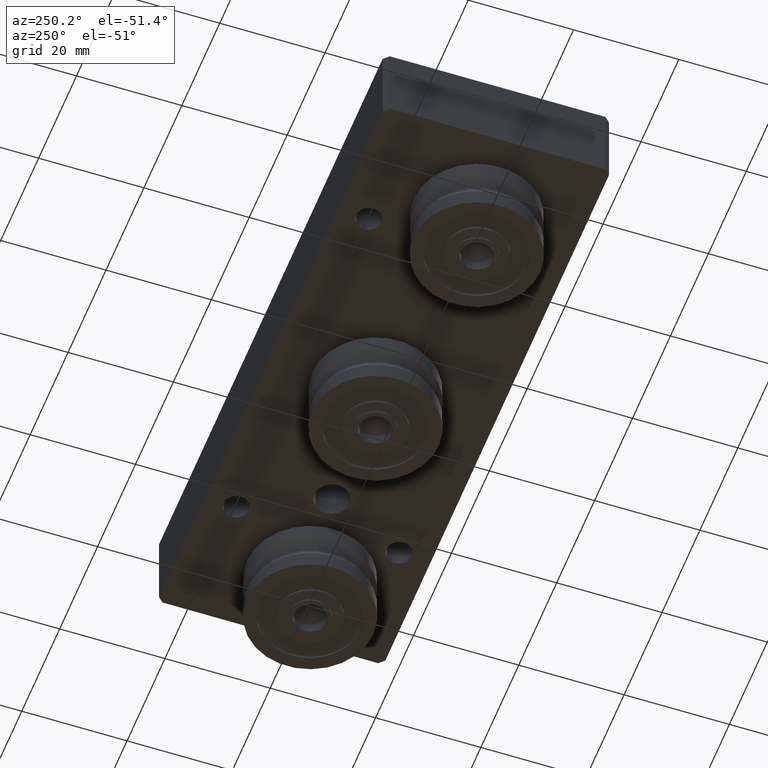
[diagram: clean part render]
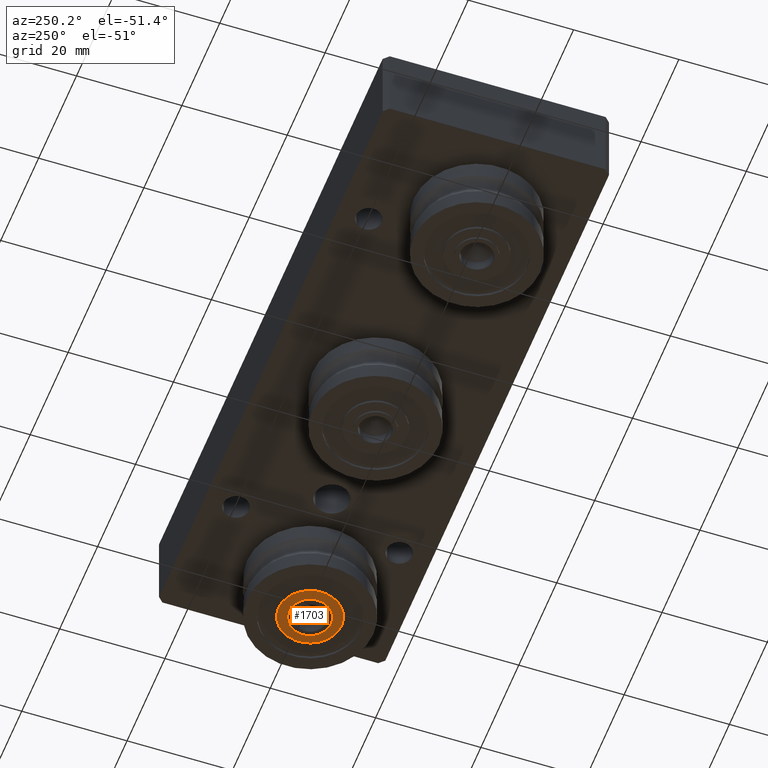
[diagram: same view with one face highlighted and labeled with its STEP entity id]
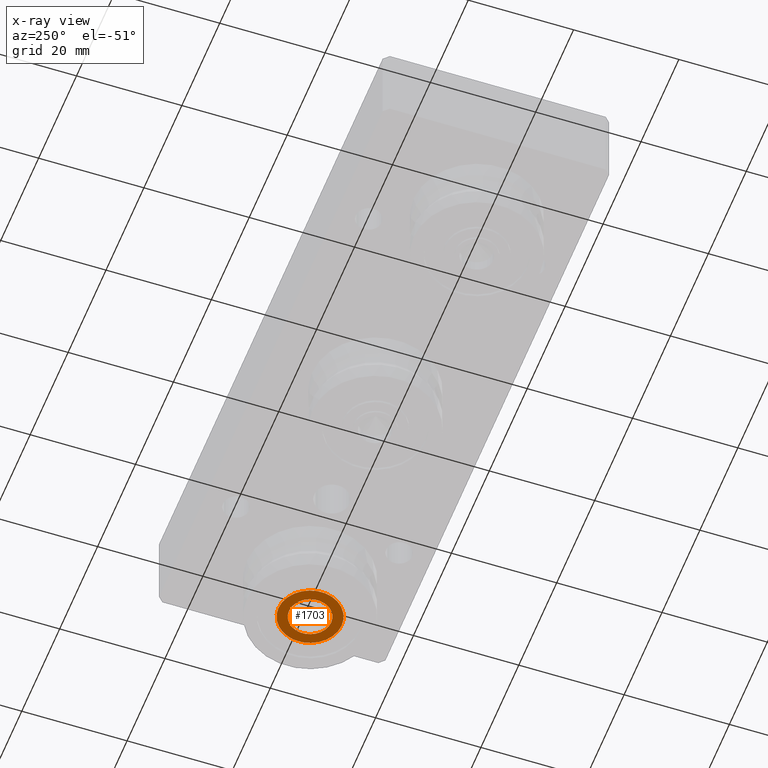
[diagram: x-ray of the same camera — body ghosted, the highlighted face saturated]
A machine part, auxiliary view. The second image highlights one B-rep face of the part: STEP entity #1703.
The next image is the same camera in x-ray: the body ghosted, the highlighted face saturated — about 0% of this face is hidden behind the body in this view.
In plain terms, the highlighted planar face has unit normal (0, 0, -1).
Its self-contained STEP definition (entity closure, byte-faithful):
#193=FACE_BOUND('',#523,.T.);
#272=CIRCLE('',#2104,6.);
#273=CIRCLE('',#2105,4.);
#379=FACE_OUTER_BOUND('',#522,.T.);
#522=EDGE_LOOP('',(#1509));
#523=EDGE_LOOP('',(#1510));
#902=VERTEX_POINT('',#3132);
#903=VERTEX_POINT('',#3134);
#1107=EDGE_CURVE('',#902,#902,#272,.T.);
#1108=EDGE_CURVE('',#903,#903,#273,.T.);
#1509=ORIENTED_EDGE('',*,*,#1107,.F.);
#1510=ORIENTED_EDGE('',*,*,#1108,.T.);
#1607=PLANE('',#2103);
#1703=ADVANCED_FACE('',(#379,#193),#1607,.T.);
#2103=AXIS2_PLACEMENT_3D('',#3131,#2605,#2606);
#2104=AXIS2_PLACEMENT_3D('',#3133,#2607,#2608);
#2105=AXIS2_PLACEMENT_3D('',#3135,#2609,#2610);
#2605=DIRECTION('center_axis',(-1.,0.,0.));
#2606=DIRECTION('ref_axis',(0.,0.,1.));
#2607=DIRECTION('center_axis',(1.,0.,0.));
#2608=DIRECTION('ref_axis',(0.,1.,0.));
#2609=DIRECTION('center_axis',(1.,0.,0.));
#2610=DIRECTION('ref_axis',(0.,1.,0.));
#3131=CARTESIAN_POINT('Origin',(-5.5,5.,0.));
#3132=CARTESIAN_POINT('',(-5.5,-6.,-7.34788079488412E-16));
#3133=CARTESIAN_POINT('Origin',(-5.5,0.,0.));
#3134=CARTESIAN_POINT('',(-5.5,-4.,-4.89858719658941E-16));
#3135=CARTESIAN_POINT('Origin',(-5.5,0.,0.));